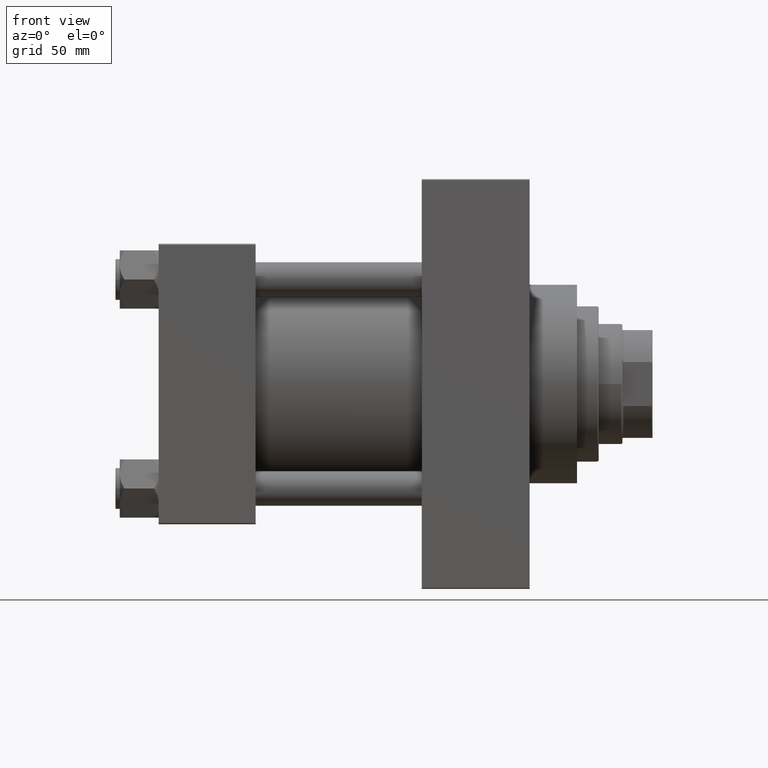
[diagram: clean part render]
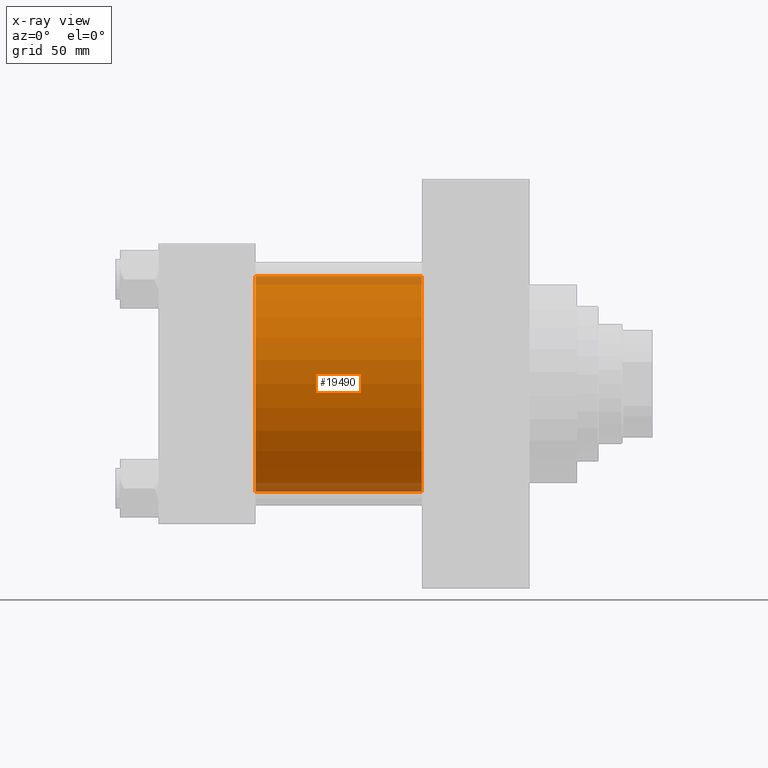
[diagram: x-ray — body ghosted, one internal face saturated and labeled with its STEP entity id]
A machine part, front view, then the same camera in x-ray: the body is ghosted and one INTERNAL B-rep face — a face not visible from any outside direction — is saturated and labeled: STEP entity #19490.
In plain terms, the highlighted cylindrical surface (partial cylindrical patch) has radius 50 mm, axis along (-1, -0, -0).
Its self-contained STEP definition (entity closure, byte-faithful):
#296 = LINE ( 'NONE', #21560, #7837 ) ;
#1358 = ORIENTED_EDGE ( 'NONE', *, *, #45739, .T. ) ;
#2747 = VERTEX_POINT ( 'NONE', #7119 ) ;
#3034 = EDGE_CURVE ( 'NONE', #9370, #46984, #7677, .T. ) ;
#4188 = CARTESIAN_POINT ( 'NONE',  ( 122.0000000000000000, -2.602085213965210642E-15, 0.000000000000000000 ) ) ;
#5440 = CARTESIAN_POINT ( 'NONE',  ( 122.0000000000000000, -2.602085213965210642E-15, 50.00000000000000000 ) ) ;
#5639 = DIRECTION ( 'NONE',  ( 1.000000000000000000, 0.000000000000000000, 0.000000000000000000 ) ) ;
#6560 = ORIENTED_EDGE ( 'NONE', *, *, #3034, .F. ) ;
#7119 = CARTESIAN_POINT ( 'NONE',  ( 122.0000000000000000, 3.521148781771555838E-15, -50.00000000000000000 ) ) ;
#7677 = CIRCLE ( 'NONE', #15397, 50.00000000000000000 ) ;
#7837 = VECTOR ( 'NONE', #17935, 1000.000000000000000 ) ;
#8622 = ORIENTED_EDGE ( 'NONE', *, *, #26442, .F. ) ;
#9354 = EDGE_CURVE ( 'NONE', #2747, #46984, #296, .T. ) ;
#9370 = VERTEX_POINT ( 'NONE', #21796 ) ;
#12523 = AXIS2_PLACEMENT_3D ( 'NONE', #31243, #20608, #20133 ) ;
#15397 = AXIS2_PLACEMENT_3D ( 'NONE', #20601, #5639, #46666 ) ;
#17935 = DIRECTION ( 'NONE',  ( -1.000000000000000000, -0.000000000000000000, -0.000000000000000000 ) ) ;
#19490 = ADVANCED_FACE ( 'NONE', ( #37733 ), #40880, .F. ) ;
#20133 = DIRECTION ( 'NONE',  ( 0.000000000000000000, 0.000000000000000000, -1.000000000000000000 ) ) ;
#20413 = LINE ( 'NONE', #5440, #38360 ) ;
#20601 = CARTESIAN_POINT ( 'NONE',  ( 45.00000000000000000, -2.602085213965210642E-15, 0.000000000000000000 ) ) ;
#20608 = DIRECTION ( 'NONE',  ( 1.000000000000000000, 0.000000000000000000, 0.000000000000000000 ) ) ;
#21560 = CARTESIAN_POINT ( 'NONE',  ( 122.0000000000000000, 3.521148781771555838E-15, -50.00000000000000000 ) ) ;
#21796 = CARTESIAN_POINT ( 'NONE',  ( 45.00000000000000000, -2.602085213965210642E-15, 50.00000000000000000 ) ) ;
#22301 = DIRECTION ( 'NONE',  ( 0.000000000000000000, 0.000000000000000000, 1.000000000000000000 ) ) ;
#24395 = VERTEX_POINT ( 'NONE', #26714 ) ;
#24899 = ORIENTED_EDGE ( 'NONE', *, *, #9354, .T. ) ;
#26442 = EDGE_CURVE ( 'NONE', #24395, #9370, #20413, .T. ) ;
#26714 = CARTESIAN_POINT ( 'NONE',  ( 122.0000000000000000, -2.602085213965210642E-15, 50.00000000000000000 ) ) ;
#27189 = DIRECTION ( 'NONE',  ( -1.000000000000000000, -0.000000000000000000, -0.000000000000000000 ) ) ;
#31243 = CARTESIAN_POINT ( 'NONE',  ( 122.0000000000000000, -2.602085213965210642E-15, 0.000000000000000000 ) ) ;
#31392 = DIRECTION ( 'NONE',  ( -1.000000000000000000, -0.000000000000000000, -0.000000000000000000 ) ) ;
#34249 = CARTESIAN_POINT ( 'NONE',  ( 45.00000000000000000, 3.521148781771555838E-15, -50.00000000000000000 ) ) ;
#36424 = CIRCLE ( 'NONE', #12523, 50.00000000000000000 ) ;
#37733 = FACE_OUTER_BOUND ( 'NONE', #39968, .T. ) ;
#38360 = VECTOR ( 'NONE', #27189, 1000.000000000000000 ) ;
#39968 = EDGE_LOOP ( 'NONE', ( #1358, #24899, #6560, #8622 ) ) ;
#40880 = CYLINDRICAL_SURFACE ( 'NONE', #46608, 50.00000000000000000 ) ;
#45739 = EDGE_CURVE ( 'NONE', #24395, #2747, #36424, .T. ) ;
#46608 = AXIS2_PLACEMENT_3D ( 'NONE', #4188, #31392, #22301 ) ;
#46666 = DIRECTION ( 'NONE',  ( 0.000000000000000000, 0.000000000000000000, -1.000000000000000000 ) ) ;
#46984 = VERTEX_POINT ( 'NONE', #34249 ) ;